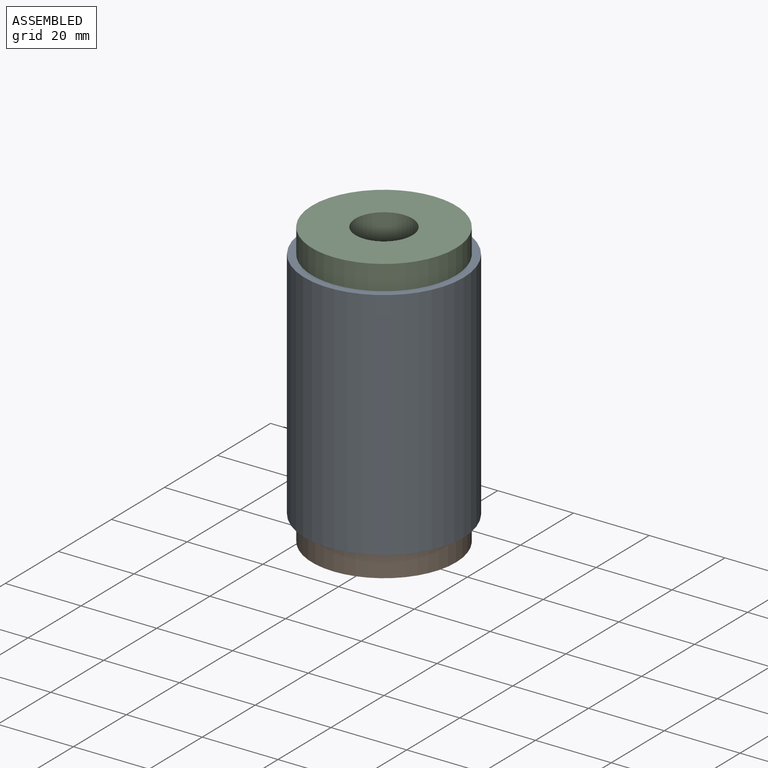
[diagram: assembled view]
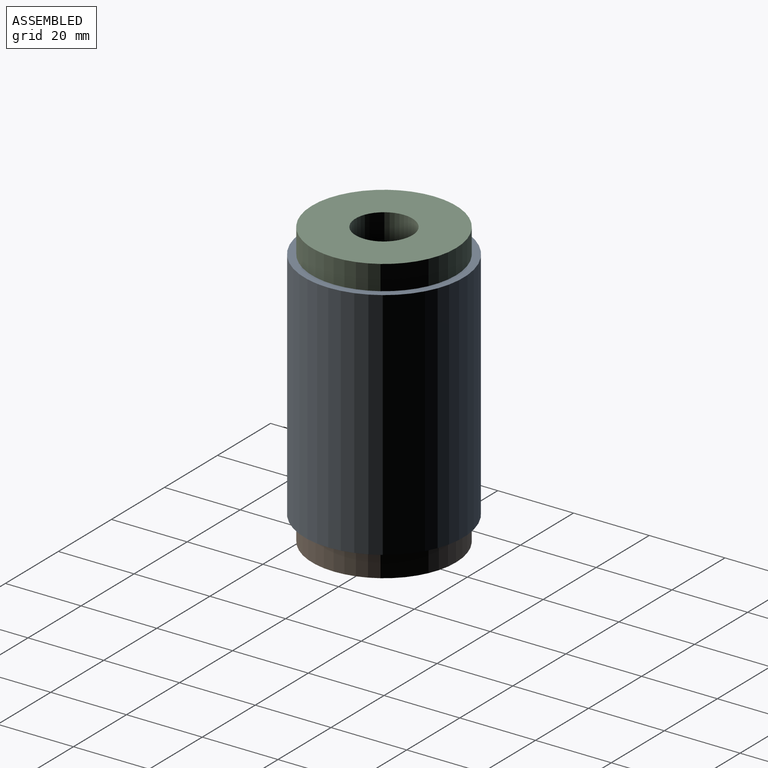
[diagram: assembled view, second angle]
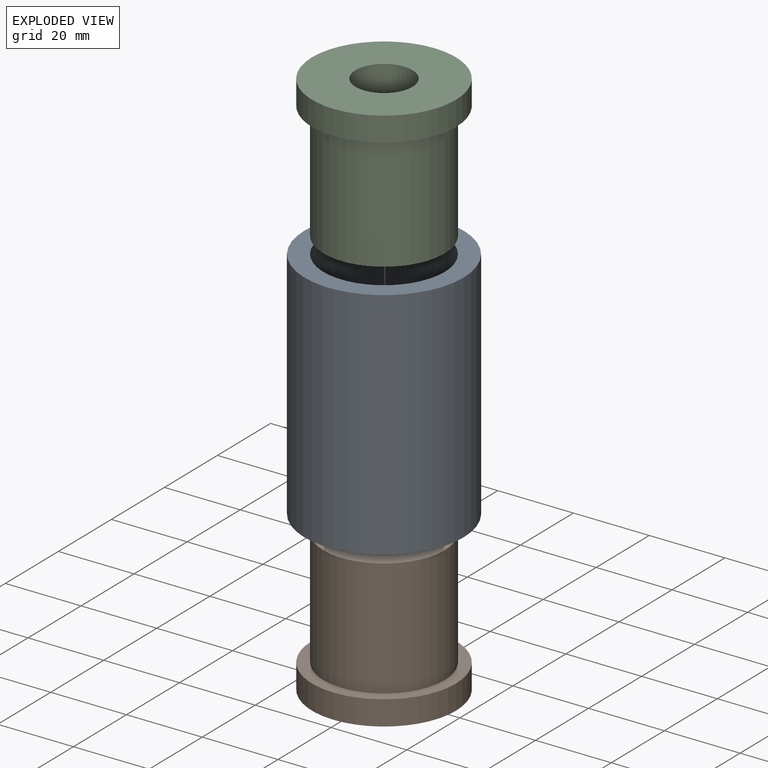
[diagram: exploded view]
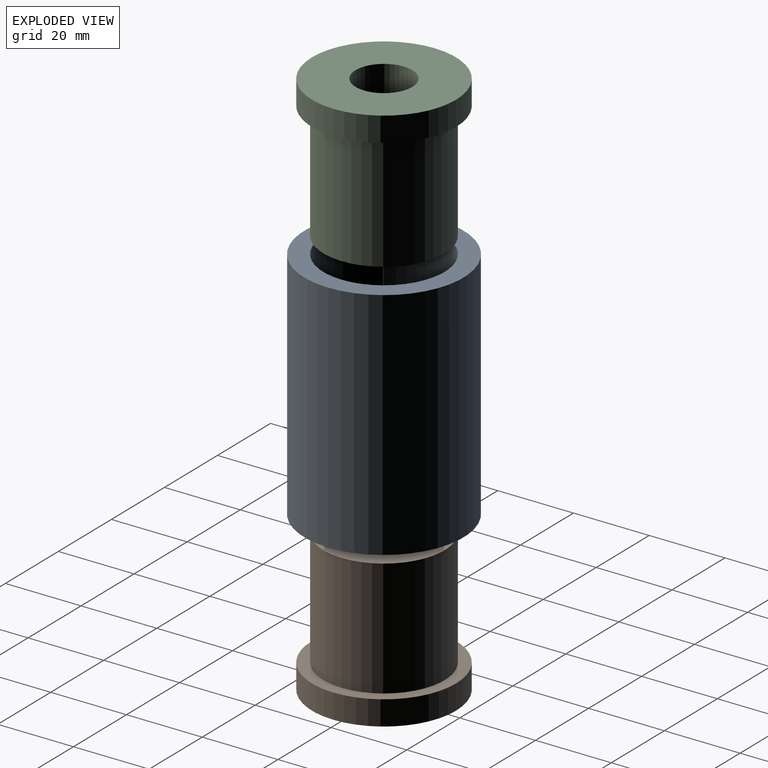
[diagram: exploded view, second angle]
ASSEMBLY  parts=3 mates=2
PART A: 4 faces, bbox 42x42x62 mm
  f0: cylinder r=16mm len=62mm, axis (0,0,1), area 6232.9mm2, adj f2,f3
  f1: cylinder r=21mm len=62mm, axis (0,0,1), area 8180.7mm2, adj f2,f3
  f2: plane 42x42mm, normal (0,0,-1), area 581.2mm2, adj f0,f1
  f3: plane 42x42mm, normal (0,0,1), area 581.2mm2, adj f0,f1
PART B: 6 faces, bbox 38x38x37.5 mm
  f0: cylinder r=7.5mm len=37.5mm, axis (0,0,-1), area 1767.1mm2, adj f2,f4
  f1: cylinder r=16mm len=32mm, axis (0,0,-1), area 3116.5mm2, adj f2,f5
  f2: plane 32x32mm, normal (0,0,-1), area 627.5mm2, adj f0,f1
  f3: cylinder r=19mm len=38mm, axis (0,0,-1), area 776mm2, adj f4,f5
  f4: plane 38x38mm, normal (0,0,1), area 957.4mm2, adj f0,f3
  f5: plane 38x38mm, normal (0,0,-1), area 329.9mm2, adj f1,f3
PART C: same geometry as B
PLACE A at identity fixed
PLACE B rot(axis=(1,0,0),180deg) t=(0,0,0)mm
PLACE C at identity
MATE fastened A.f1 <-> C.f1  axis (0,0,1) through (0,0,31)mm
MATE fastened A.f1 <-> B.f3  axis (0,0,-1) through (0,0,-31)mm
